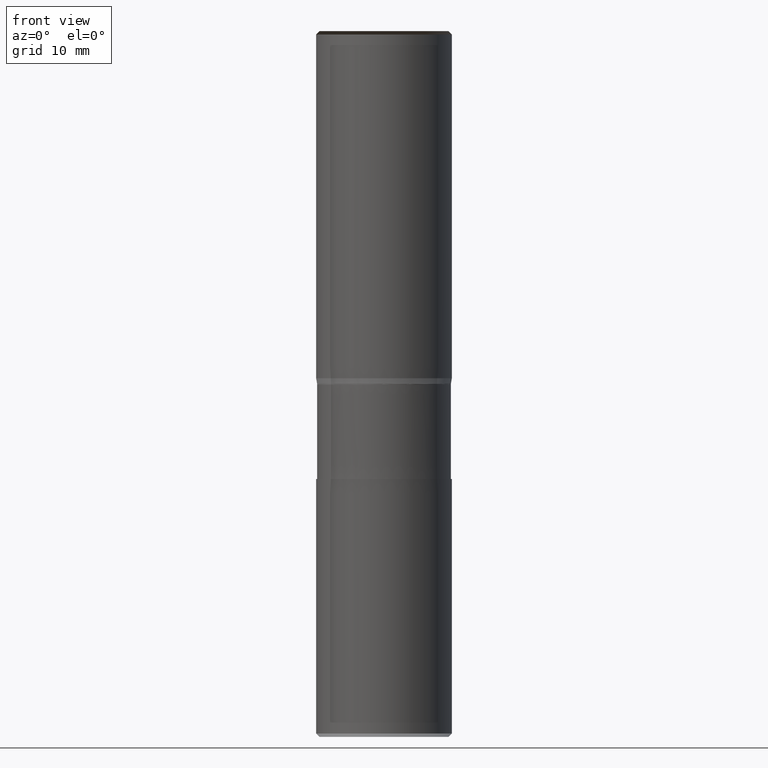
[diagram: clean part render]
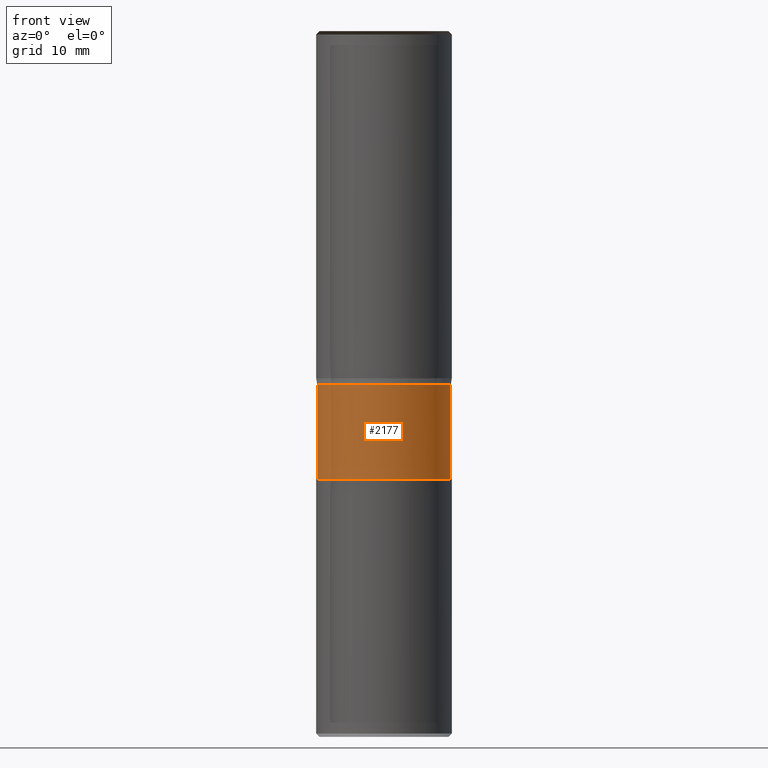
[diagram: same view with one face highlighted and labeled with its STEP entity id]
A machine part, front view. The second image highlights one B-rep face of the part: STEP entity #2177.
In plain terms, the highlighted face is a freeform B-spline surface patch.
Its self-contained STEP definition (entity closure, byte-faithful):
#1798=CARTESIAN_POINT('',(9.85,0.0,-14.850692272943));
#1802=CARTESIAN_POINT('',(-9.85,0.0,-14.850692272943));
#1803=CARTESIAN_POINT('',(9.85,0.0,-0.938180936469));
#1807=CARTESIAN_POINT('',(-9.85,0.0,-0.938180936469));
#1834=CARTESIAN_POINT('',(-9.85,-9.85,-14.850692272943));
#1835=CARTESIAN_POINT('',(0.0,-9.85,-14.850692272943));
#1836=CARTESIAN_POINT('',(9.85,-9.85,-14.850692272943));
#1837=CARTESIAN_POINT('',(-9.85,-9.85,-0.938180936469));
#1838=CARTESIAN_POINT('',(0.0,-9.85,-0.938180936469));
#1839=CARTESIAN_POINT('',(9.85,-9.85,-0.938180936469));
#2158=(
BOUNDED_SURFACE()
B_SPLINE_SURFACE(1,2,(
(#1802,#1834,#1835,#1836,#1798),
(#1807,#1837,#1838,#1839,#1803)
), .UNSPECIFIED.,.F.,.F.,.F.)
B_SPLINE_SURFACE_WITH_KNOTS((2,2),(3,2,3),(
0.0,1.0),(
0.0,0.5,1.0), .UNSPECIFIED.)
GEOMETRIC_REPRESENTATION_ITEM()
RATIONAL_B_SPLINE_SURFACE(((1.0,0.707106781187,1.0,0.707106781187,1.0),
(1.0,0.707106781187,1.0,0.707106781187,1.0)
))
REPRESENTATION_ITEM('')
SURFACE()
);
#2159=(
BOUNDED_CURVE()
B_SPLINE_CURVE(2,(#1798,#1836,#1835,#1834,#1802),.UNSPECIFIED.,.F.,.F.)
B_SPLINE_CURVE_WITH_KNOTS((3,2,3),
(0.0,0.5,1.0),.UNSPECIFIED.)
CURVE()
GEOMETRIC_REPRESENTATION_ITEM()
RATIONAL_B_SPLINE_CURVE((1.0,0.707106781187,1.0,0.707106781187,1.0))
REPRESENTATION_ITEM('')
);
#2160=(
BOUNDED_CURVE()
B_SPLINE_CURVE(1,(#1802,#1807),.UNSPECIFIED.,.F.,.F.)
B_SPLINE_CURVE_WITH_KNOTS((2,2),
(0.0,1.0),.UNSPECIFIED.)
CURVE()
GEOMETRIC_REPRESENTATION_ITEM()
RATIONAL_B_SPLINE_CURVE((1.0,1.0))
REPRESENTATION_ITEM('')
);
#2161=(
BOUNDED_CURVE()
B_SPLINE_CURVE(2,(#1807,#1837,#1838,#1839,#1803),.UNSPECIFIED.,.F.,.F.)
B_SPLINE_CURVE_WITH_KNOTS((3,2,3),
(0.0,0.5,1.0),.UNSPECIFIED.)
CURVE()
GEOMETRIC_REPRESENTATION_ITEM()
RATIONAL_B_SPLINE_CURVE((1.0,0.707106781187,1.0,0.707106781187,1.0))
REPRESENTATION_ITEM('')
);
#2162=(
BOUNDED_CURVE()
B_SPLINE_CURVE(1,(#1803,#1798),.UNSPECIFIED.,.F.,.F.)
B_SPLINE_CURVE_WITH_KNOTS((2,2),
(0.0,1.0),.UNSPECIFIED.)
CURVE()
GEOMETRIC_REPRESENTATION_ITEM()
RATIONAL_B_SPLINE_CURVE((1.0,1.0))
REPRESENTATION_ITEM('')
);
#2163=VERTEX_POINT('',#1798);
#2164=VERTEX_POINT('',#1802);
#2165=VERTEX_POINT('',#1803);
#2166=VERTEX_POINT('',#1807);
#2167=EDGE_CURVE('',#2163,#2164,#2159,.T.);
#2168=EDGE_CURVE('',#2164,#2166,#2160,.T.);
#2169=EDGE_CURVE('',#2166,#2165,#2161,.T.);
#2170=EDGE_CURVE('',#2165,#2163,#2162,.T.);
#2171=ORIENTED_EDGE('',*,*,#2167,.T.);
#2172=ORIENTED_EDGE('',*,*,#2168,.T.);
#2173=ORIENTED_EDGE('',*,*,#2169,.T.);
#2174=ORIENTED_EDGE('',*,*,#2170,.T.);
#2175=EDGE_LOOP('',(#2171,#2172,#2173,#2174));
#2176=FACE_OUTER_BOUND('',#2175,.T.);
#2177=ADVANCED_FACE('',(#2176),#2158,.T.);